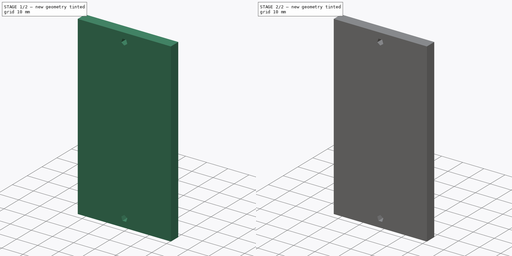
[diagram: build sequence overview — one tinted view per stage of 2, left to right]
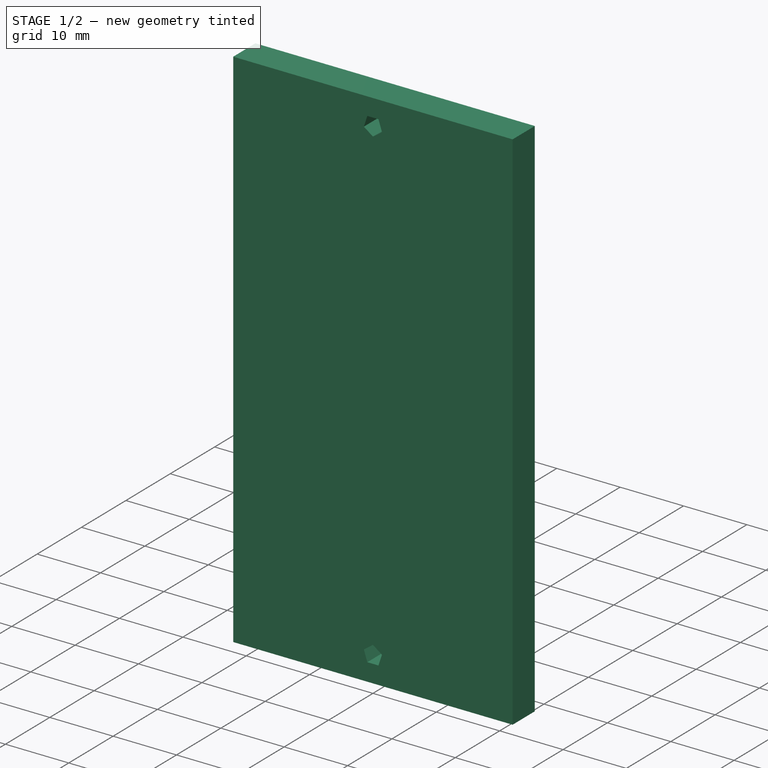
[diagram: stage 1 of 2 — iso view after this stage's code; geometry added in this stage tinted green]
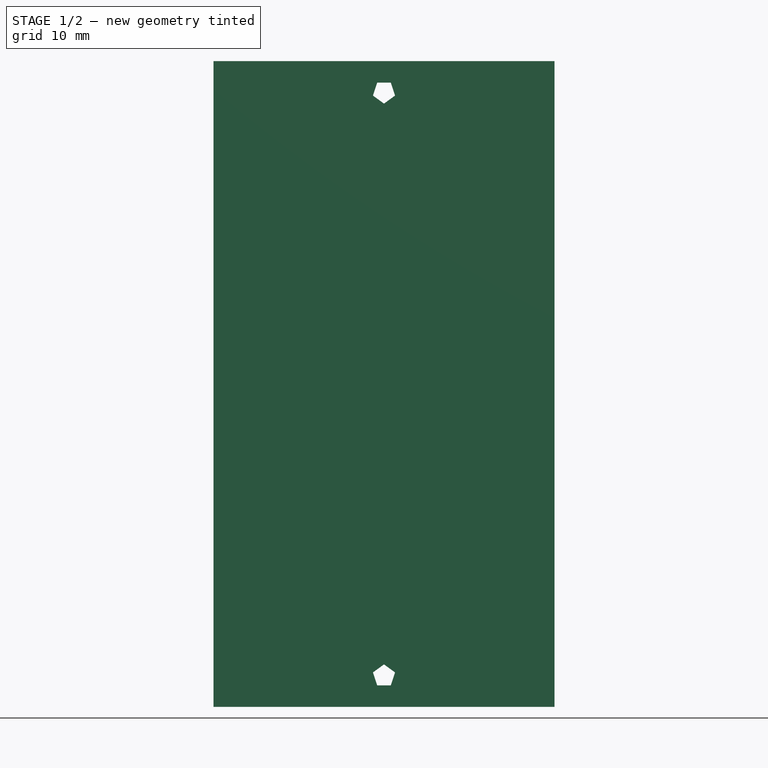
[diagram: stage 1 of 2 — front view after this stage's code; geometry added in this stage tinted green]
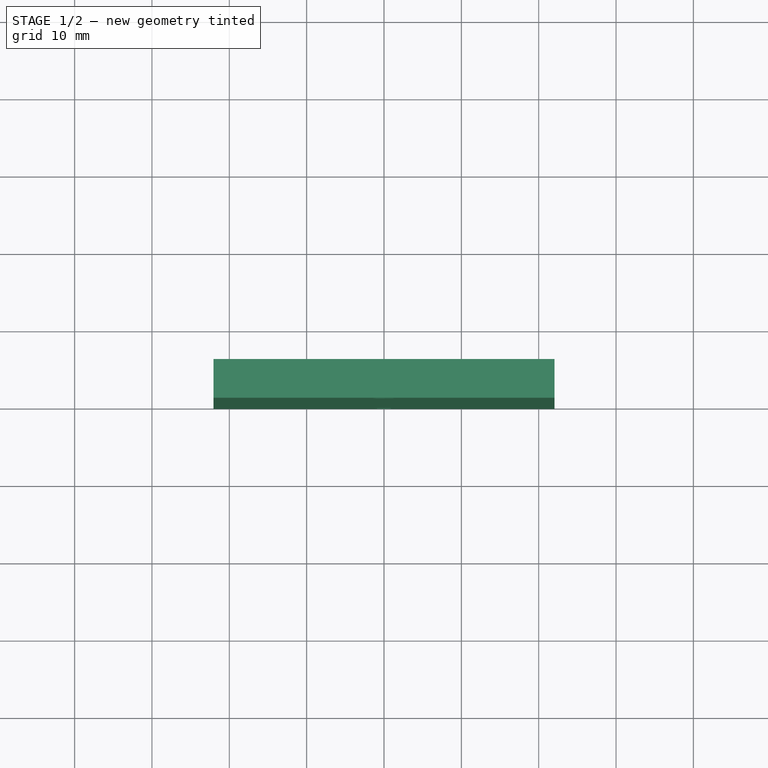
[diagram: stage 1 of 2 — top view after this stage's code; geometry added in this stage tinted green]
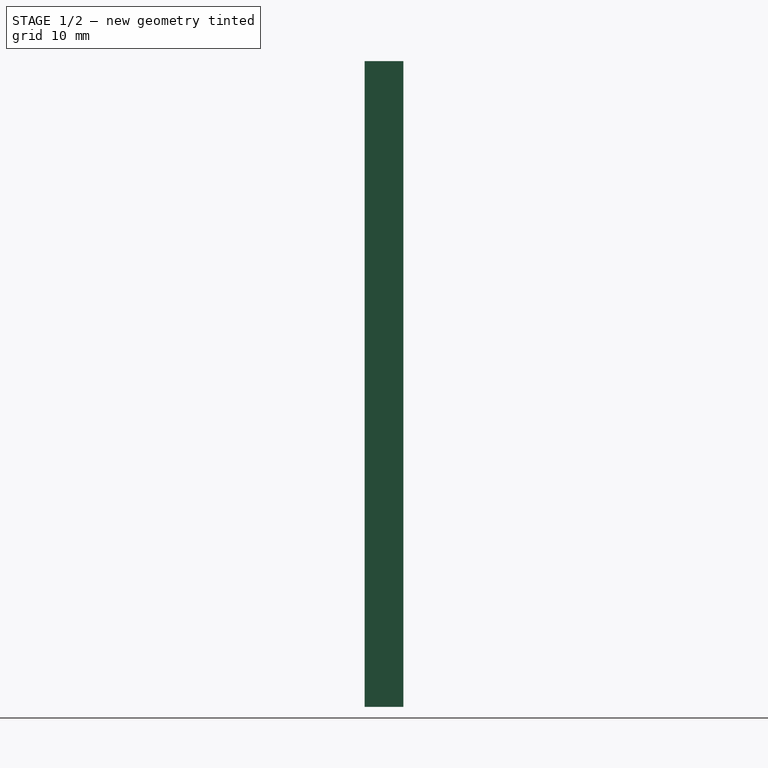
[diagram: stage 1 of 2 — right view after this stage's code; geometry added in this stage tinted green]
FCSTD DOCUMENT  (FreeCAD 0.21R33771 (Git))
Label: blank_segment
License: All rights reserved
LicenseURL: https://en.wikipedia.org/wiki/All_rights_reserved
objects: PartDesign::Plane×3, Sketcher::SketchObject×3, PartDesign::Pocket×2, PartDesign::Pad×1, PartDesign::Body×1
note: 13 computed .brp shape members not serialized (recipe doc carries the construction recipe); baked Part::Feature solids carry a one-line shape summary decoded from their .brp

FEATURE [PartDesign::Plane] DatumPlane  label="Front Face"
  Length = 60
  MapMode = 5
  Placement = pos=(0,0,0) rot=(1,0,0;1.5708rad)
  ResizeMode = 0
  Support = -> [XZ_Plane]
  Width = 60
FEATURE [PartDesign::Plane] DatumPlane001  label="Back Face"
  AttachmentOffset = pos=(0,0,-0.6) rot=(0,0,1;0rad)
  Length = 60
  MapMode = 5
  Placement = pos=(0,0.6,1e-16) rot=(1,0,0;1.5708rad)
  ResizeMode = 0
  Support = -> [DatumPlane]
  Width = 60
FEATURE [PartDesign::Plane] DatumPlane002  label="Back Raised"
  AttachmentOffset = pos=(0,0,-5) rot=(0,0,1;0rad)
  Length = 60
  MapMode = 5
  Placement = pos=(0,5,1.1e-15) rot=(1,0,0;1.5708rad)
  ResizeMode = 0
  Support = -> [DatumPlane]
  Width = 60
FEATURE [Sketcher::SketchObject] Sketch  label="Outer"
  FullyConstrained = true
  MapMode = 5
  Placement = pos=(0,0,0) rot=(1,0,0;1.5708rad)
  Support = -> [DatumPlane]
  sketch-geometry (5):
    g0: LineSegment StartX=-22.05 StartY=41.75 StartZ=0 EndX=-22.05 EndY=-41.75 EndZ=0
    g1: LineSegment StartX=-22.05 StartY=-41.75 StartZ=0 EndX=22.05 EndY=-41.75 EndZ=0
    g2: LineSegment StartX=22.05 StartY=-41.75 StartZ=0 EndX=22.05 EndY=41.75 EndZ=0
    g3: LineSegment StartX=22.05 StartY=41.75 StartZ=0 EndX=-22.05 EndY=41.75 EndZ=0
    g4: GeomPoint X=0 Y=0 Z=0
  constraints (12):
    c: Coincident(g0,g1)
    c: Coincident(g1,g2)
    c: Coincident(g2,g3)
    c: Coincident(g3,g0)
    c: Horizontal(g1)
    c: Horizontal(g3)
    c: Vertical(g0)
    c: Vertical(g2)
    c: Symmetric(g1,g0,g4)
    c: Coincident(g4,g-1)
    c: DistanceX(g3,g3) = 44.1  'width'
    c: DistanceY(g2,g2) = 83.5  'height'
FEATURE [PartDesign::Pad] Pad  label="Volume"
  Direction = (0,-1,-2e-16)
  Length = 10
  Length2 = 10
  Placement = pos=(0,0,0) rot=(1,0,0;1.5708rad)
  Profile = -> Sketch
  ReferenceAxis = -> Sketch [N_Axis]
  Type = 3
  UpToFace = -> DatumPlane002 [Plane]
FEATURE [Sketcher::SketchObject] Sketch001  label="Cutout Outer"
  FullyConstrained = true
  MapMode = 5
  Placement = pos=(0,5,1.1e-15) rot=(1,0,0;1.5708rad)
  Support = -> [DatumPlane002]
  expr: Constraints[10] = <<Outer>>.Constraints.width - 1.5 mm
  expr: Constraints[11] = <<Outer>>.Constraints.height - 15 mm
  sketch-geometry (5):
    g0: LineSegment StartX=-21.3 StartY=34.25 StartZ=0 EndX=-21.3 EndY=-34.25 EndZ=0
    g1: LineSegment StartX=-21.3 StartY=-34.25 StartZ=0 EndX=21.3 EndY=-34.25 EndZ=0
    g2: LineSegment StartX=21.3 StartY=-34.25 StartZ=0 EndX=21.3 EndY=34.25 EndZ=0
    g3: LineSegment StartX=21.3 StartY=34.25 StartZ=0 EndX=-21.3 EndY=34.25 EndZ=0
    g4: GeomPoint X=0 Y=0 Z=0
  constraints (12):
    c: Coincident(g0,g1)
    c: Coincident(g1,g2)
    c: Coincident(g2,g3)
    c: Coincident(g3,g0)
    c: Horizontal(g1)
    c: Horizontal(g3)
    c: Vertical(g0)
    c: Vertical(g2)
    c: Symmetric(g1,g0,g4)
    c: Coincident(g4,g-1)
    c: DistanceX(g3,g3) = 42.6
    c: DistanceY(g2,g2) = 68.5
FEATURE [Sketcher::SketchObject] Sketch002  label="Mounting Holes Outer"
  FullyConstrained = true
  MapMode = 5
  Placement = pos=(0,0,0) rot=(1,0,0;1.5708rad)
  Support = -> [DatumPlane]
  sketch-geometry (12):
    g0: LineSegment StartX=1.42658 StartY=37.2865 StartZ=0 EndX=0.881678 EndY=38.9635 EndZ=0
    g1: LineSegment StartX=0.881678 StartY=38.9635 StartZ=0 EndX=-0.881678 EndY=38.9635 EndZ=0
    g2: LineSegment StartX=-0.881678 StartY=38.9635 StartZ=0 EndX=-1.42658 EndY=37.2865 EndZ=0
    g3: LineSegment StartX=-1.42658 StartY=37.2865 StartZ=0 EndX=0 EndY=36.25 EndZ=0
    g4: LineSegment StartX=0 StartY=36.25 StartZ=0 EndX=1.42658 EndY=37.2865 EndZ=0
    g5: Circle CenterX=0 CenterY=37.75 CenterZ=0 NormalX=0 NormalY=0 NormalZ=1 AngleXU=0 Radius=1.5
    g6: LineSegment StartX=1.42658 StartY=-37.2865 StartZ=0 EndX=0 EndY=-36.25 EndZ=0
    g7: LineSegment StartX=0 StartY=-36.25 StartZ=0 EndX=-1.42658 EndY=-37.2865 EndZ=0
    g8: LineSegment StartX=-1.42658 StartY=-37.2865 StartZ=0 EndX=-0.881678 EndY=-38.9635 EndZ=0
    g9: LineSegment StartX=-0.881678 StartY=-38.9635 StartZ=0 EndX=0.881678 EndY=-38.9635 EndZ=0
    g10: LineSegment StartX=0.881678 StartY=-38.9635 StartZ=0 EndX=1.42658 EndY=-37.2865 EndZ=0
    g11: Circle CenterX=0 CenterY=-37.75 CenterZ=0 NormalX=0 NormalY=0 NormalZ=1 AngleXU=0 Radius=1.5
  constraints (29):
    c: Coincident(g0,g1)
    c: Coincident(g1,g2)
    c: Coincident(g2,g3)
    c: Coincident(g3,g4)
    c: Coincident(g4,g0)
    c: Equal(g0, g1-g4) x4
    c: PointOnObject(g0,g5)
    c: PointOnObject(g1,g5)
    c: PointOnObject(g2,g5)
    c: PointOnObject(g3,g5)
    c: PointOnObject(g4,g5)
    c: PointOnObject(g5,g-2)
    c: Coincident(g6,g7)
    c: Coincident(g7,g8)
    c: Coincident(g8,g9)
    c: Coincident(g9,g10)
    c: Coincident(g10,g6)
    c: Equal(g6, g7-g10) x4
    c: PointOnObject(g6,g11)
    c: PointOnObject(g7,g11)
    c: PointOnObject(g8,g11)
    c: PointOnObject(g9,g11)
    c: PointOnObject(g10,g11)
    c: Equal(g5,g11)
    c: Diameter(g5) = 3
    c: Symmetric(g5,g11,g-1)
    c: DistanceY(g11,g5) = 75.5
    c: PointOnObject(g6,g-2)
    c: PointOnObject(g3,g-2)
FEATURE [PartDesign::Pocket] Pocket001  label="Mounting Holes"
  BaseFeature = -> Pad
  Direction = (0,1,2e-16)
  Length = 0
  Length2 = 5
  Placement = pos=(0,0,0) rot=(1,0,0;1.5708rad)
  Profile = -> Sketch002
  ReferenceAxis = -> Sketch002 [N_Axis]
  Type = 3
  UpToFace = -> DatumPlane002
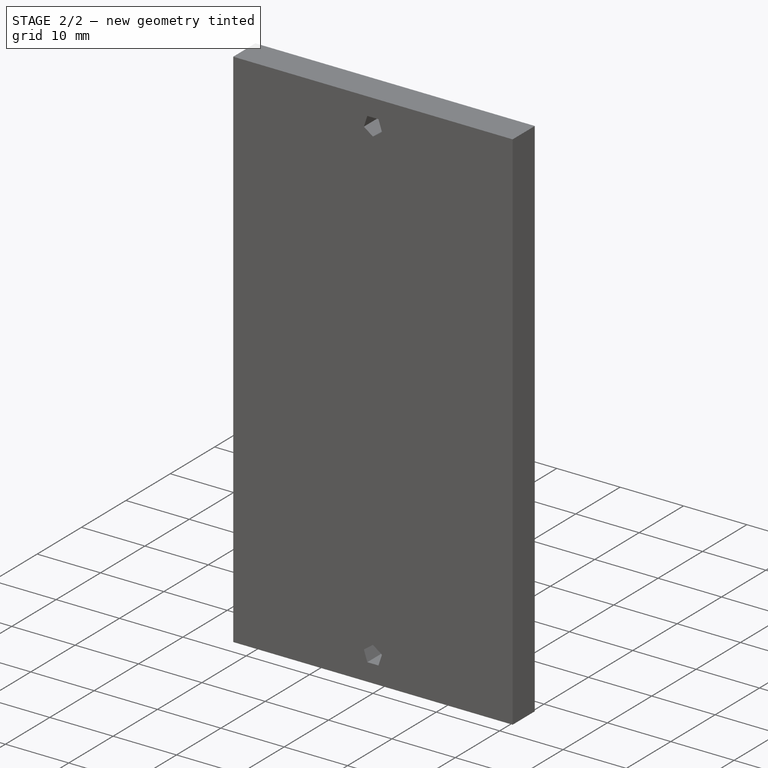
[diagram: stage 2 of 2 — iso view after this stage's code; geometry added in this stage tinted green]
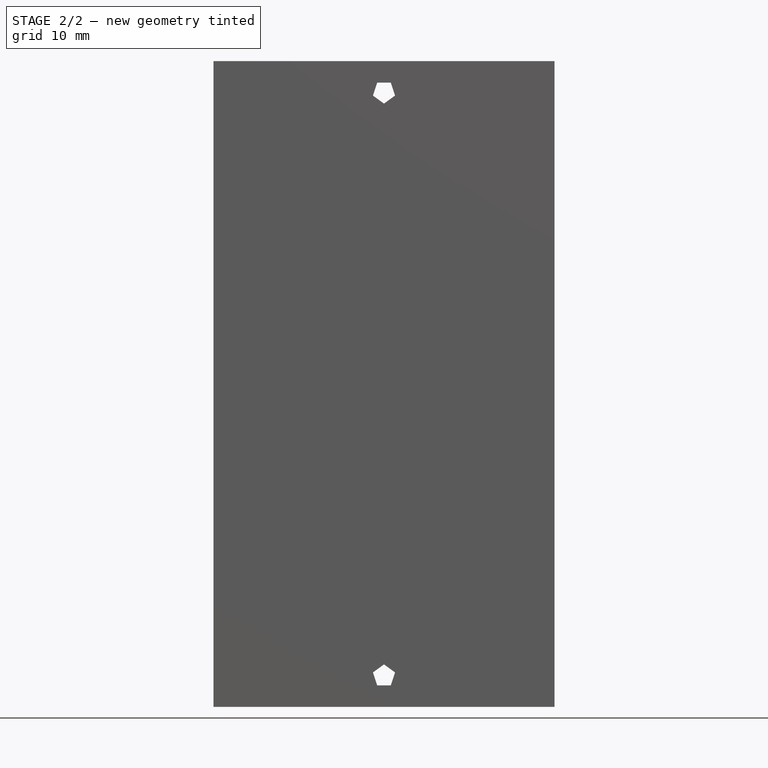
[diagram: stage 2 of 2 — front view after this stage's code; geometry added in this stage tinted green]
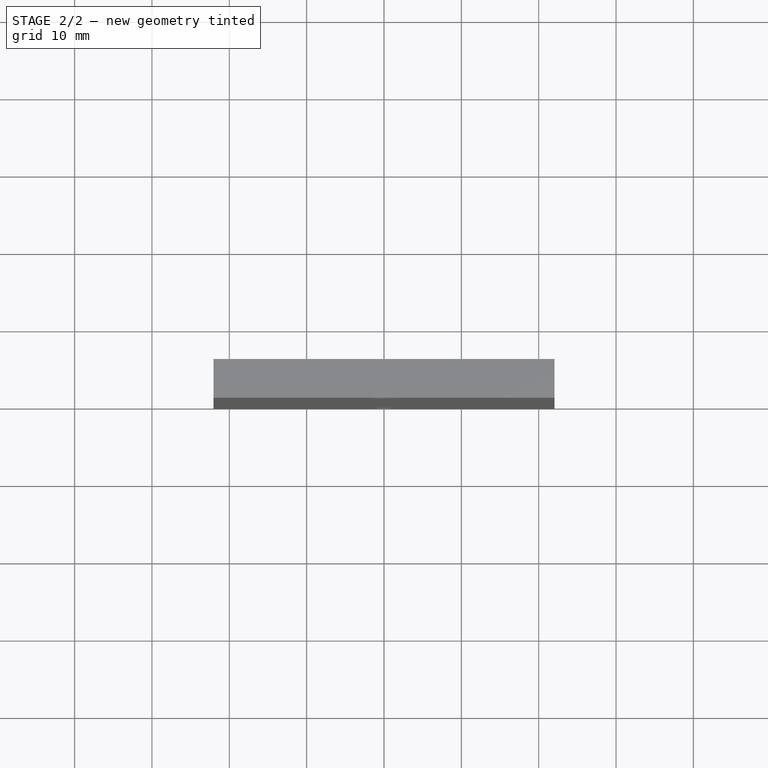
[diagram: stage 2 of 2 — top view after this stage's code; geometry added in this stage tinted green]
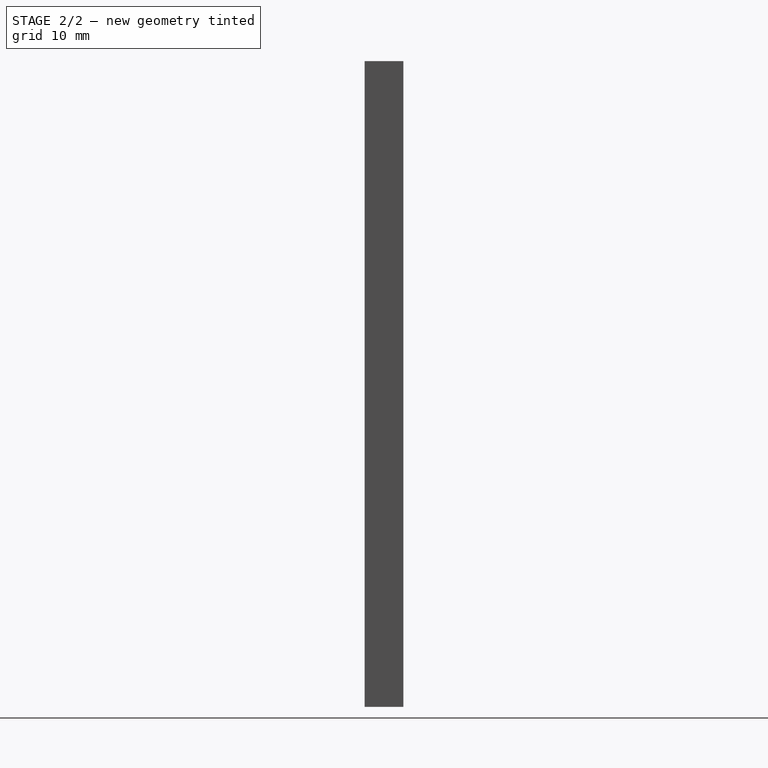
[diagram: stage 2 of 2 — right view after this stage's code; geometry added in this stage tinted green]
FEATURE [PartDesign::Pocket] Pocket  label="Cutout"
  BaseFeature = -> Pocket001
  Direction = (0,1,2e-16)
  Length = 0
  Length2 = 5
  Placement = pos=(0,0,0) rot=(1,0,0;1.5708rad)
  Profile = -> Sketch001
  ReferenceAxis = -> Sketch001 [N_Axis]
  Type = 3
  UpToFace = -> DatumPlane001
FEATURE [PartDesign::Body] Body
  Group = -> [DatumPlane,DatumPlane001,DatumPlane002,Sketch,Pad,Sketch001,Sketch002,Pocket001,Pocket]
  Origin = -> Origin
  Tip = -> Pocket
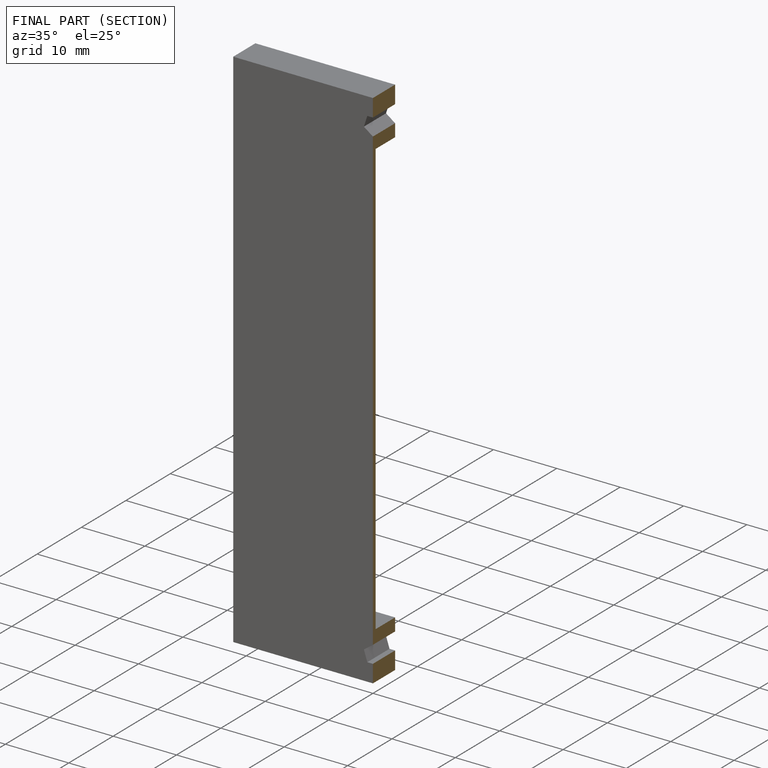
[diagram: finished part — half-section view (interior)]
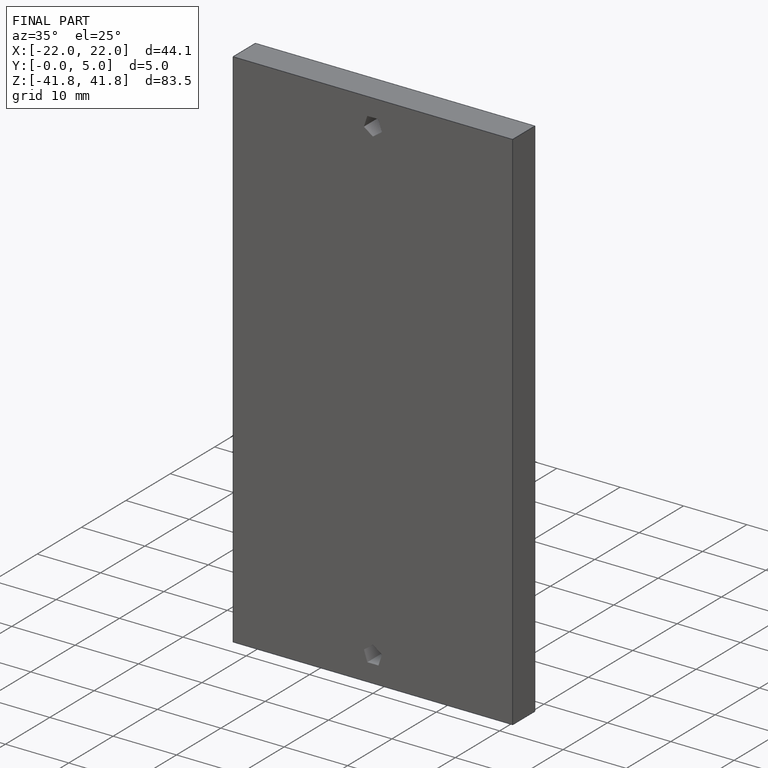
[diagram: finished part — iso view with bounding-box wireframe]
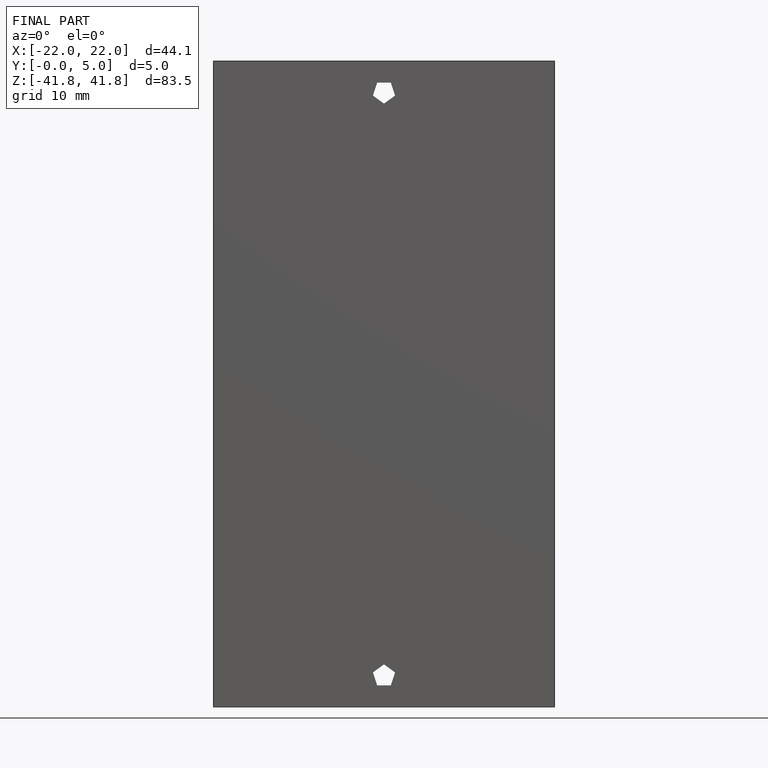
[diagram: finished part — front view with bounding-box wireframe]
